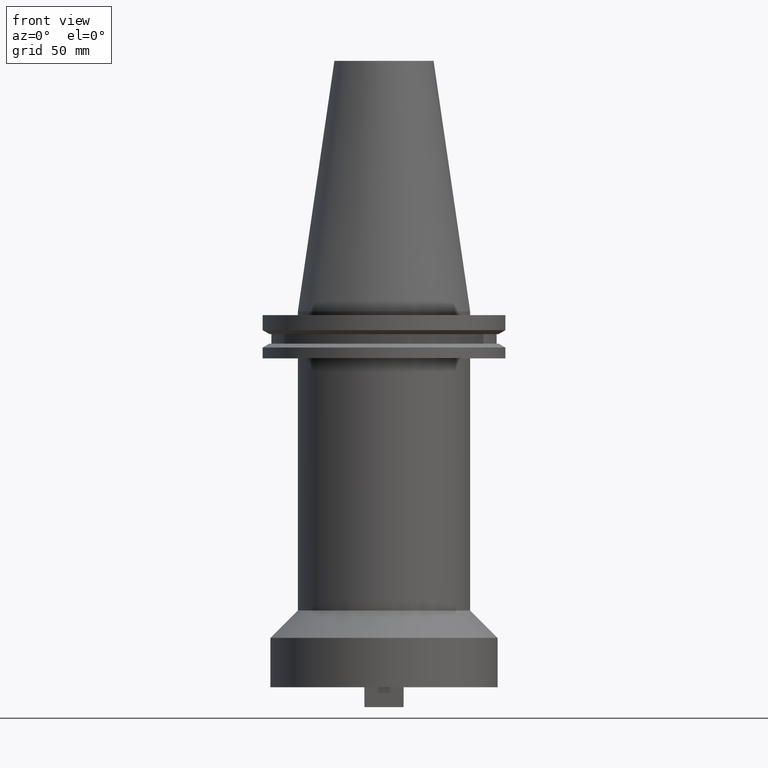
[diagram: clean part render]
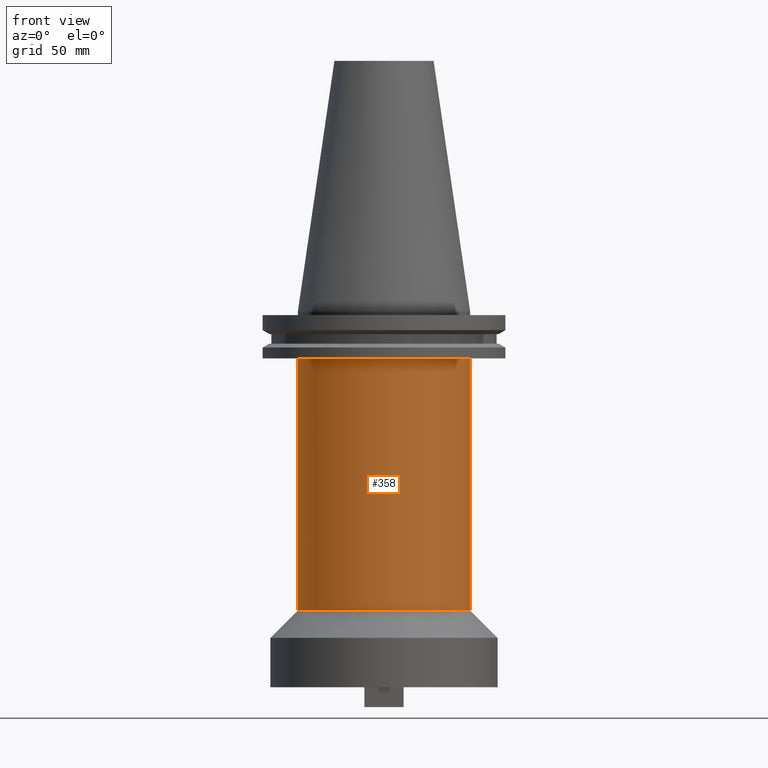
[diagram: same view with one face highlighted and labeled with its STEP entity id]
A machine part, front view. The second image highlights one B-rep face of the part: STEP entity #358.
In plain terms, the highlighted cylindrical surface (partial cylindrical patch) has radius 34.925 mm, axis along (-0, -0, 1).
Its self-contained STEP definition (entity closure, byte-faithful):
#4 = DIRECTION ( 'NONE',  ( 1.000000000000000000, 0.000000000000000000, 0.000000000000000000 ) ) ;
#24 = EDGE_CURVE ( 'NONE', #950, #369, #304, .T. ) ;
#31 = VERTEX_POINT ( 'NONE', #851 ) ;
#44 = EDGE_CURVE ( 'NONE', #182, #369, #508, .T. ) ;
#106 = VECTOR ( 'NONE', #175, 1000.000000000000000 ) ;
#149 = CARTESIAN_POINT ( 'NONE',  ( 0.000000000000000000, 0.000000000000000000, 101.5999999999999943 ) ) ;
#175 = DIRECTION ( 'NONE',  ( -0.000000000000000000, -0.000000000000000000, 1.000000000000000000 ) ) ;
#181 = EDGE_CURVE ( 'NONE', #31, #182, #186, .T. ) ;
#182 = VERTEX_POINT ( 'NONE', #446 ) ;
#186 = CIRCLE ( 'NONE', #1083, 34.92499999999999716 ) ;
#230 = LINE ( 'NONE', #827, #910 ) ;
#231 = CARTESIAN_POINT ( 'NONE',  ( -34.92499999999999716, 4.277078946022130887E-15, -19.04999999999999716 ) ) ;
#274 = DIRECTION ( 'NONE',  ( -0.000000000000000000, -0.000000000000000000, 1.000000000000000000 ) ) ;
#304 = CIRCLE ( 'NONE', #1011, 34.92499999999999716 ) ;
#319 = FACE_OUTER_BOUND ( 'NONE', #619, .T. ) ;
#321 = DIRECTION ( 'NONE',  ( -0.000000000000000000, -0.000000000000000000, 1.000000000000000000 ) ) ;
#358 = ADVANCED_FACE ( 'NONE', ( #319 ), #393, .T. ) ;
#369 = VERTEX_POINT ( 'NONE', #388 ) ;
#388 = CARTESIAN_POINT ( 'NONE',  ( 34.92499999999999716, 0.000000000000000000, -19.04999999999999716 ) ) ;
#393 = CYLINDRICAL_SURFACE ( 'NONE', #738, 34.92499999999999716 ) ;
#440 = ORIENTED_EDGE ( 'NONE', *, *, #44, .T. ) ;
#446 = CARTESIAN_POINT ( 'NONE',  ( 34.92499999999999716, 0.000000000000000000, -121.2699999999999960 ) ) ;
#508 = LINE ( 'NONE', #861, #106 ) ;
#519 = DIRECTION ( 'NONE',  ( -0.000000000000000000, -0.000000000000000000, 1.000000000000000000 ) ) ;
#595 = CARTESIAN_POINT ( 'NONE',  ( 0.000000000000000000, 0.000000000000000000, -19.04999999999999716 ) ) ;
#619 = EDGE_LOOP ( 'NONE', ( #1058, #943, #440, #946 ) ) ;
#738 = AXIS2_PLACEMENT_3D ( 'NONE', #149, #754, #1095 ) ;
#754 = DIRECTION ( 'NONE',  ( -0.000000000000000000, -0.000000000000000000, 1.000000000000000000 ) ) ;
#827 = CARTESIAN_POINT ( 'NONE',  ( -34.92499999999999716, 4.277078946022130887E-15, 101.5999999999999943 ) ) ;
#851 = CARTESIAN_POINT ( 'NONE',  ( -34.92499999999999716, 4.277078946022130887E-15, -121.2699999999999960 ) ) ;
#861 = CARTESIAN_POINT ( 'NONE',  ( 34.92499999999999716, 0.000000000000000000, 101.5999999999999943 ) ) ;
#893 = DIRECTION ( 'NONE',  ( 1.000000000000000000, 0.000000000000000000, 0.000000000000000000 ) ) ;
#910 = VECTOR ( 'NONE', #321, 1000.000000000000000 ) ;
#943 = ORIENTED_EDGE ( 'NONE', *, *, #181, .T. ) ;
#946 = ORIENTED_EDGE ( 'NONE', *, *, #24, .F. ) ;
#950 = VERTEX_POINT ( 'NONE', #231 ) ;
#1011 = AXIS2_PLACEMENT_3D ( 'NONE', #595, #519, #4 ) ;
#1042 = CARTESIAN_POINT ( 'NONE',  ( 0.000000000000000000, 0.000000000000000000, -121.2699999999999960 ) ) ;
#1058 = ORIENTED_EDGE ( 'NONE', *, *, #1079, .F. ) ;
#1079 = EDGE_CURVE ( 'NONE', #31, #950, #230, .T. ) ;
#1083 = AXIS2_PLACEMENT_3D ( 'NONE', #1042, #274, #893 ) ;
#1095 = DIRECTION ( 'NONE',  ( 1.000000000000000000, 0.000000000000000000, 0.000000000000000000 ) ) ;